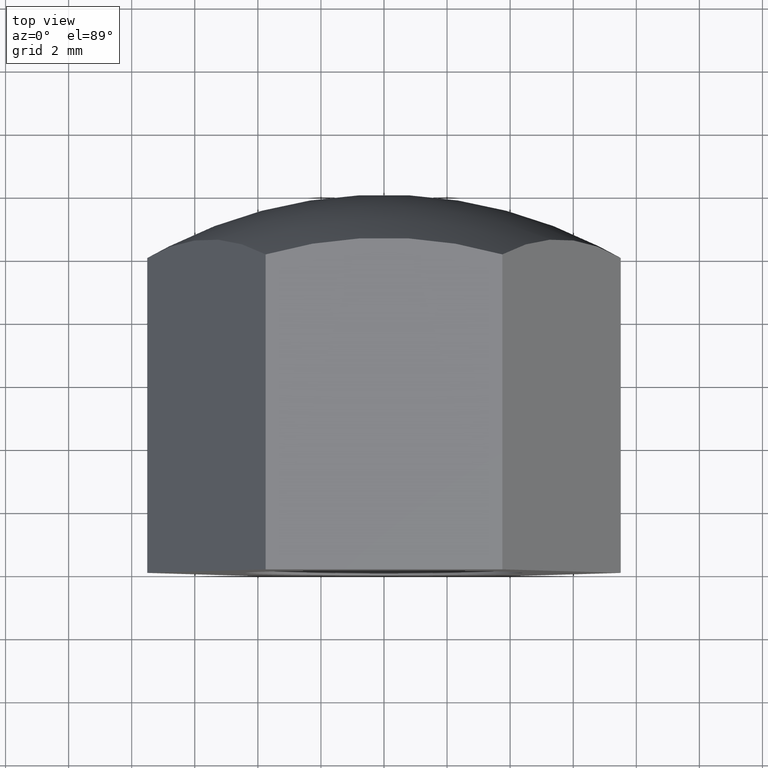
[diagram: clean part render]
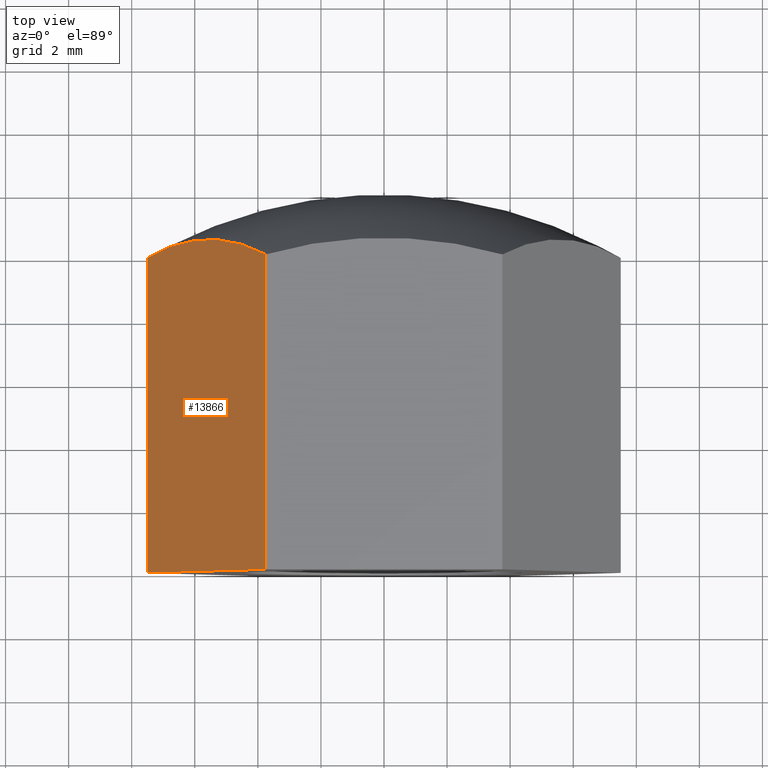
[diagram: same view with one face highlighted and labeled with its STEP entity id]
A machine part, top view. The second image highlights one B-rep face of the part: STEP entity #13866.
In plain terms, the highlighted planar face has unit normal (0.866, 0, -0.5).
Its self-contained STEP definition (entity closure, byte-faithful):
#93 = CIRCLE ( 'NONE', #14774, 13.51850583459577848 ) ;
#209 = ORIENTED_EDGE ( 'NONE', *, *, #4515, .T. ) ;
#265 = CARTESIAN_POINT ( 'NONE',  ( -3.752776749732565698, 12.00000000000000000, 6.499999999999997335 ) ) ;
#672 = LINE ( 'NONE', #4603, #14968 ) ;
#1012 = VECTOR ( 'NONE', #12164, 1000.000000000000227 ) ;
#2233 = VECTOR ( 'NONE', #13988, 1000.000000000000000 ) ;
#2424 = EDGE_CURVE ( 'NONE', #5704, #5072, #672, .T. ) ;
#2783 = ORIENTED_EDGE ( 'NONE', *, *, #12315, .F. ) ;
#2946 = CARTESIAN_POINT ( 'NONE',  ( -7.505553499465134060, 0.000000000000000000, -8.190246208612452051E-16 ) ) ;
#3027 = PLANE ( 'NONE',  #13327 ) ;
#3032 = CARTESIAN_POINT ( 'NONE',  ( -3.752776749732565698, 0.000000000000000000, 6.499999999999997335 ) ) ;
#3947 = CARTESIAN_POINT ( 'NONE',  ( -7.505553499465134060, 12.00000000000000000, -8.190246208612452051E-16 ) ) ;
#3990 = DIRECTION ( 'NONE',  ( -0.5000000000000002220, 0.000000000000000000, -0.8660254037844384856 ) ) ;
#4435 = LINE ( 'NONE', #2946, #1012 ) ;
#4515 = EDGE_CURVE ( 'NONE', #5072, #9926, #4435, .T. ) ;
#4603 = CARTESIAN_POINT ( 'NONE',  ( -7.505553499465134060, 12.00000000000000000, -8.190246208612452051E-16 ) ) ;
#4883 = CARTESIAN_POINT ( 'NONE',  ( -7.505553499465135836, 9.987173159185438465, -2.602085213965210642E-15 ) ) ;
#5072 = VERTEX_POINT ( 'NONE', #5370 ) ;
#5370 = CARTESIAN_POINT ( 'NONE',  ( -7.505553499465134060, 0.000000000000000000, -8.190246208612452051E-16 ) ) ;
#5704 = VERTEX_POINT ( 'NONE', #4883 ) ;
#6810 = DIRECTION ( 'NONE',  ( -0.8660254037844385966, -0.000000000000000000, 0.5000000000000002220 ) ) ;
#7138 = EDGE_CURVE ( 'NONE', #7564, #5704, #93, .T. ) ;
#7306 = ORIENTED_EDGE ( 'NONE', *, *, #7138, .T. ) ;
#7356 = CARTESIAN_POINT ( 'NONE',  ( -3.752776749732565698, 9.987173159185438465, 6.499999999999997335 ) ) ;
#7564 = VERTEX_POINT ( 'NONE', #7356 ) ;
#7774 = FACE_OUTER_BOUND ( 'NONE', #12822, .T. ) ;
#7969 = DIRECTION ( 'NONE',  ( -0.000000000000000000, -1.000000000000000000, -0.000000000000000000 ) ) ;
#9142 = ORIENTED_EDGE ( 'NONE', *, *, #2424, .T. ) ;
#9926 = VERTEX_POINT ( 'NONE', #3032 ) ;
#10312 = DIRECTION ( 'NONE',  ( -0.5000000000000002220, 0.000000000000000000, -0.8660254037844385966 ) ) ;
#11563 = CARTESIAN_POINT ( 'NONE',  ( -5.629165124598849879, -3.000000000000000888, 3.250000000000000888 ) ) ;
#12150 = DIRECTION ( 'NONE',  ( 0.8660254037844385966, 0.000000000000000000, -0.5000000000000003331 ) ) ;
#12164 = DIRECTION ( 'NONE',  ( 0.5000000000000001110, 0.000000000000000000, 0.8660254037844384856 ) ) ;
#12315 = EDGE_CURVE ( 'NONE', #7564, #9926, #13952, .T. ) ;
#12822 = EDGE_LOOP ( 'NONE', ( #2783, #7306, #9142, #209 ) ) ;
#13327 = AXIS2_PLACEMENT_3D ( 'NONE', #3947, #12150, #3990 ) ;
#13866 = ADVANCED_FACE ( 'NONE', ( #7774 ), #3027, .F. ) ;
#13952 = LINE ( 'NONE', #265, #2233 ) ;
#13988 = DIRECTION ( 'NONE',  ( -0.000000000000000000, -1.000000000000000000, -0.000000000000000000 ) ) ;
#14774 = AXIS2_PLACEMENT_3D ( 'NONE', #11563, #6810, #10312 ) ;
#14968 = VECTOR ( 'NONE', #7969, 1000.000000000000000 ) ;